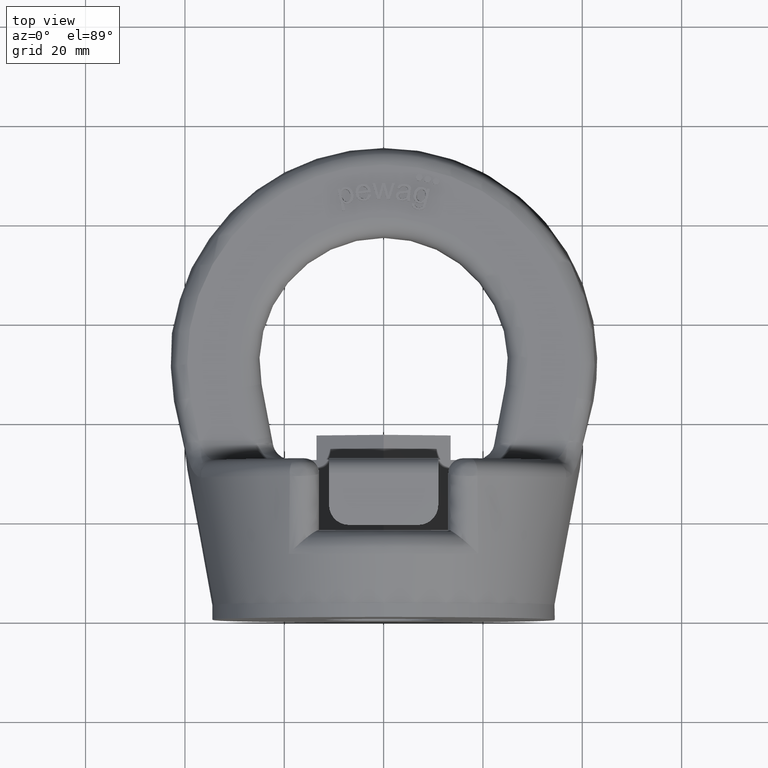
[diagram: clean part render]
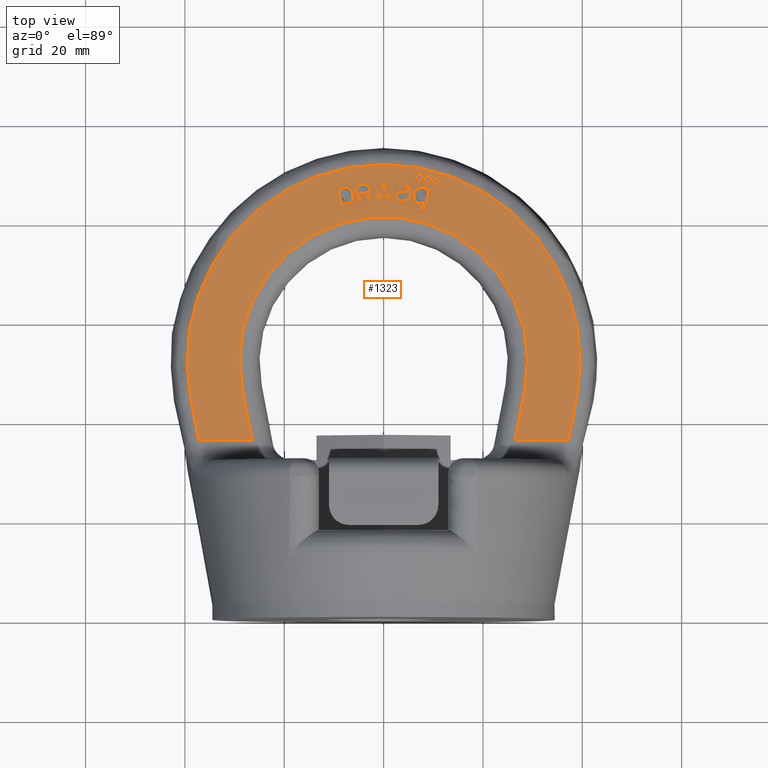
[diagram: same view with one face highlighted and labeled with its STEP entity id]
A machine part, top view. The second image highlights one B-rep face of the part: STEP entity #1323.
In plain terms, the highlighted planar face has unit normal (0, -0, -1).
Its self-contained STEP definition (entity closure, byte-faithful):
#1323=ADVANCED_FACE('',(#1770,#1771,#1772,#1773,#1774,#1775,#1776,#1777,
#1778),#1563,.F.);
#1563=PLANE('',#5106);
#1676=CIRCLE('',#5101,0.675);
#1677=CIRCLE('',#5102,0.675000000000001);
#1678=CIRCLE('',#5103,0.675000000000001);
#1679=CIRCLE('',#5104,29.);
#1680=CIRCLE('',#5105,39.5474398665704);
#1770=FACE_BOUND('',#1828,.T.);
#1771=FACE_BOUND('',#1829,.T.);
#1772=FACE_BOUND('',#1830,.T.);
#1773=FACE_BOUND('',#1831,.T.);
#1774=FACE_BOUND('',#1832,.T.);
#1775=FACE_BOUND('',#1833,.T.);
#1776=FACE_BOUND('',#1834,.T.);
#1777=FACE_BOUND('',#1835,.T.);
#1778=FACE_BOUND('',#1836,.T.);
#1828=EDGE_LOOP('',(#2700,#2701,#2702,#2703,#2704,#2705,#2706));
#1829=EDGE_LOOP('',(#2707,#2708,#2709,#2710,#2711,#2712,#2713,#2714,#2715,
#2716,#2717,#2718,#2719,#2720,#2721));
#1830=EDGE_LOOP('',(#2722,#2723,#2724,#2725,#2726));
#1831=EDGE_LOOP('',(#2727));
#1832=EDGE_LOOP('',(#2728));
#1833=EDGE_LOOP('',(#2729));
#1834=EDGE_LOOP('',(#2730,#2731,#2732,#2733,#2734,#2735,#2736,#2737));
#1835=EDGE_LOOP('',(#2738,#2739,#2740,#2741,#2742,#2743));
#1836=EDGE_LOOP('',(#2744,#2745,#2746,#2747,#2748,#2749,#2750,#2751,#2752));
#2104=LINE('',#6271,#2374);
#2105=LINE('',#6303,#2375);
#2106=LINE('',#6305,#2376);
#2107=LINE('',#6306,#2377);
#2108=LINE('',#6309,#2378);
#2109=LINE('',#6311,#2379);
#2110=LINE('',#6313,#2380);
#2111=LINE('',#6327,#2381);
#2112=LINE('',#6329,#2382);
#2113=LINE('',#6345,#2383);
#2114=LINE('',#6347,#2384);
#2115=LINE('',#6349,#2385);
#2116=LINE('',#6351,#2386);
#2117=LINE('',#6353,#2387);
#2118=LINE('',#6369,#2388);
#2119=LINE('',#6392,#2389);
#2120=LINE('',#6402,#2390);
#2121=LINE('',#6404,#2391);
#2122=LINE('',#6418,#2392);
#2123=LINE('',#6420,#2393);
#2124=LINE('',#6421,#2394);
#2125=LINE('',#6424,#2395);
#2126=LINE('',#6426,#2396);
#2127=LINE('',#6428,#2397);
#2128=LINE('',#6430,#2398);
#2129=LINE('',#6454,#2399);
#2130=LINE('',#6499,#2400);
#2374=VECTOR('',#5377,1.);
#2375=VECTOR('',#5378,1.);
#2376=VECTOR('',#5379,1.);
#2377=VECTOR('',#5380,1.);
#2378=VECTOR('',#5381,1.);
#2379=VECTOR('',#5382,1.);
#2380=VECTOR('',#5383,1.);
#2381=VECTOR('',#5384,1.);
#2382=VECTOR('',#5385,1.);
#2383=VECTOR('',#5386,1.);
#2384=VECTOR('',#5387,1.);
#2385=VECTOR('',#5388,1.);
#2386=VECTOR('',#5389,1.);
#2387=VECTOR('',#5390,1.);
#2388=VECTOR('',#5391,1.);
#2389=VECTOR('',#5392,1.);
#2390=VECTOR('',#5401,1.);
#2391=VECTOR('',#5402,1.);
#2392=VECTOR('',#5405,1.);
#2393=VECTOR('',#5406,1.);
#2394=VECTOR('',#5407,1.);
#2395=VECTOR('',#5408,1.);
#2396=VECTOR('',#5409,1.);
#2397=VECTOR('',#5410,1.);
#2398=VECTOR('',#5411,1.);
#2399=VECTOR('',#5412,1.);
#2400=VECTOR('',#5413,1.);
#2700=ORIENTED_EDGE('',*,*,#4256,.T.);
#2701=ORIENTED_EDGE('',*,*,#4257,.T.);
#2702=ORIENTED_EDGE('',*,*,#4258,.T.);
#2703=ORIENTED_EDGE('',*,*,#4259,.T.);
#2704=ORIENTED_EDGE('',*,*,#4260,.T.);
#2705=ORIENTED_EDGE('',*,*,#4261,.T.);
#2706=ORIENTED_EDGE('',*,*,#4262,.T.);
#2707=ORIENTED_EDGE('',*,*,#4263,.T.);
#2708=ORIENTED_EDGE('',*,*,#4264,.T.);
#2709=ORIENTED_EDGE('',*,*,#4265,.T.);
#2710=ORIENTED_EDGE('',*,*,#4266,.T.);
#2711=ORIENTED_EDGE('',*,*,#4267,.T.);
#2712=ORIENTED_EDGE('',*,*,#4268,.T.);
#2713=ORIENTED_EDGE('',*,*,#4269,.T.);
#2714=ORIENTED_EDGE('',*,*,#4270,.T.);
#2715=ORIENTED_EDGE('',*,*,#4271,.T.);
#2716=ORIENTED_EDGE('',*,*,#4272,.T.);
#2717=ORIENTED_EDGE('',*,*,#4273,.T.);
#2718=ORIENTED_EDGE('',*,*,#4274,.T.);
#2719=ORIENTED_EDGE('',*,*,#4275,.T.);
#2720=ORIENTED_EDGE('',*,*,#4276,.T.);
#2721=ORIENTED_EDGE('',*,*,#4277,.T.);
#2722=ORIENTED_EDGE('',*,*,#4278,.T.);
#2723=ORIENTED_EDGE('',*,*,#4279,.T.);
#2724=ORIENTED_EDGE('',*,*,#4280,.T.);
#2725=ORIENTED_EDGE('',*,*,#4281,.T.);
#2726=ORIENTED_EDGE('',*,*,#4282,.T.);
#2727=ORIENTED_EDGE('',*,*,#4283,.F.);
#2728=ORIENTED_EDGE('',*,*,#4284,.F.);
#2729=ORIENTED_EDGE('',*,*,#4285,.F.);
#2730=ORIENTED_EDGE('',*,*,#4286,.T.);
#2731=ORIENTED_EDGE('',*,*,#4287,.T.);
#2732=ORIENTED_EDGE('',*,*,#4288,.T.);
#2733=ORIENTED_EDGE('',*,*,#4289,.T.);
#2734=ORIENTED_EDGE('',*,*,#4290,.T.);
#2735=ORIENTED_EDGE('',*,*,#4291,.T.);
#2736=ORIENTED_EDGE('',*,*,#4292,.T.);
#2737=ORIENTED_EDGE('',*,*,#4293,.T.);
#2738=ORIENTED_EDGE('',*,*,#4294,.T.);
#2739=ORIENTED_EDGE('',*,*,#4295,.T.);
#2740=ORIENTED_EDGE('',*,*,#4296,.T.);
#2741=ORIENTED_EDGE('',*,*,#4297,.T.);
#2742=ORIENTED_EDGE('',*,*,#4298,.T.);
#2743=ORIENTED_EDGE('',*,*,#4299,.T.);
#2744=ORIENTED_EDGE('',*,*,#4300,.T.);
#2745=ORIENTED_EDGE('',*,*,#4301,.T.);
#2746=ORIENTED_EDGE('',*,*,#4302,.T.);
#2747=ORIENTED_EDGE('',*,*,#4303,.T.);
#2748=ORIENTED_EDGE('',*,*,#4304,.T.);
#2749=ORIENTED_EDGE('',*,*,#4305,.T.);
#2750=ORIENTED_EDGE('',*,*,#4306,.T.);
#2751=ORIENTED_EDGE('',*,*,#4307,.T.);
#2752=ORIENTED_EDGE('',*,*,#4308,.T.);
#3872=VERTEX_POINT('',#6264);
#3873=VERTEX_POINT('',#6265);
#3874=VERTEX_POINT('',#6270);
#3875=VERTEX_POINT('',#6272);
#3876=VERTEX_POINT('',#6285);
#3877=VERTEX_POINT('',#6302);
#3878=VERTEX_POINT('',#6304);
#3879=VERTEX_POINT('',#6307);
#3880=VERTEX_POINT('',#6308);
#3881=VERTEX_POINT('',#6310);
#3882=VERTEX_POINT('',#6312);
#3883=VERTEX_POINT('',#6314);
#3884=VERTEX_POINT('',#6321);
#3885=VERTEX_POINT('',#6326);
#3886=VERTEX_POINT('',#6328);
#3887=VERTEX_POINT('',#6330);
#3888=VERTEX_POINT('',#6337);
#3889=VERTEX_POINT('',#6344);
#3890=VERTEX_POINT('',#6346);
#3891=VERTEX_POINT('',#6348);
#3892=VERTEX_POINT('',#6350);
#3893=VERTEX_POINT('',#6352);
#3894=VERTEX_POINT('',#6362);
#3895=VERTEX_POINT('',#6363);
#3896=VERTEX_POINT('',#6368);
#3897=VERTEX_POINT('',#6370);
#3898=VERTEX_POINT('',#6391);
#3899=VERTEX_POINT('',#6394);
#3900=VERTEX_POINT('',#6396);
#3901=VERTEX_POINT('',#6398);
#3902=VERTEX_POINT('',#6400);
#3903=VERTEX_POINT('',#6401);
#3904=VERTEX_POINT('',#6403);
#3905=VERTEX_POINT('',#6405);
#3906=VERTEX_POINT('',#6410);
#3907=VERTEX_POINT('',#6412);
#3908=VERTEX_POINT('',#6417);
#3909=VERTEX_POINT('',#6419);
#3910=VERTEX_POINT('',#6422);
#3911=VERTEX_POINT('',#6423);
#3912=VERTEX_POINT('',#6425);
#3913=VERTEX_POINT('',#6427);
#3914=VERTEX_POINT('',#6429);
#3915=VERTEX_POINT('',#6431);
#3916=VERTEX_POINT('',#6455);
#3917=VERTEX_POINT('',#6456);
#3918=VERTEX_POINT('',#6461);
#3919=VERTEX_POINT('',#6478);
#3920=VERTEX_POINT('',#6485);
#3921=VERTEX_POINT('',#6498);
#3922=VERTEX_POINT('',#6500);
#3923=VERTEX_POINT('',#6505);
#3924=VERTEX_POINT('',#6518);
#4256=EDGE_CURVE('',#3872,#3873,#4842,.T.);
#4257=EDGE_CURVE('',#3873,#3874,#4843,.T.);
#4258=EDGE_CURVE('',#3874,#3875,#2104,.T.);
#4259=EDGE_CURVE('',#3875,#3876,#4844,.T.);
#4260=EDGE_CURVE('',#3876,#3877,#4845,.T.);
#4261=EDGE_CURVE('',#3877,#3878,#2105,.T.);
#4262=EDGE_CURVE('',#3878,#3872,#2106,.T.);
#4263=EDGE_CURVE('',#3879,#3880,#2107,.T.);
#4264=EDGE_CURVE('',#3880,#3881,#2108,.T.);
#4265=EDGE_CURVE('',#3881,#3882,#2109,.T.);
#4266=EDGE_CURVE('',#3882,#3883,#2110,.T.);
#4267=EDGE_CURVE('',#3883,#3884,#4846,.T.);
#4268=EDGE_CURVE('',#3884,#3885,#4847,.T.);
#4269=EDGE_CURVE('',#3885,#3886,#2111,.T.);
#4270=EDGE_CURVE('',#3886,#3887,#2112,.T.);
#4271=EDGE_CURVE('',#3887,#3888,#4848,.T.);
#4272=EDGE_CURVE('',#3888,#3889,#4849,.T.);
#4273=EDGE_CURVE('',#3889,#3890,#2113,.T.);
#4274=EDGE_CURVE('',#3890,#3891,#2114,.T.);
#4275=EDGE_CURVE('',#3891,#3892,#2115,.T.);
#4276=EDGE_CURVE('',#3892,#3893,#2116,.T.);
#4277=EDGE_CURVE('',#3893,#3879,#2117,.T.);
#4278=EDGE_CURVE('',#3894,#3895,#4850,.T.);
#4279=EDGE_CURVE('',#3895,#3896,#4851,.T.);
#4280=EDGE_CURVE('',#3896,#3897,#2118,.T.);
#4281=EDGE_CURVE('',#3897,#3898,#4852,.T.);
#4282=EDGE_CURVE('',#3898,#3894,#2119,.T.);
#4283=EDGE_CURVE('',#3899,#3899,#1676,.T.);
#4284=EDGE_CURVE('',#3900,#3900,#1677,.T.);
#4285=EDGE_CURVE('',#3901,#3901,#1678,.T.);
#4286=EDGE_CURVE('',#3902,#3903,#1679,.T.);
#4287=EDGE_CURVE('',#3903,#3904,#2120,.T.);
#4288=EDGE_CURVE('',#3904,#3905,#2121,.T.);
#4289=EDGE_CURVE('',#3905,#3906,#4853,.T.);
#4290=EDGE_CURVE('',#3906,#3907,#1680,.T.);
#4291=EDGE_CURVE('',#3907,#3908,#4854,.T.);
#4292=EDGE_CURVE('',#3908,#3909,#2122,.T.);
#4293=EDGE_CURVE('',#3909,#3902,#2123,.T.);
#4294=EDGE_CURVE('',#3910,#3911,#2124,.T.);
#4295=EDGE_CURVE('',#3911,#3912,#2125,.T.);
#4296=EDGE_CURVE('',#3912,#3913,#2126,.T.);
#4297=EDGE_CURVE('',#3913,#3914,#2127,.T.);
#4298=EDGE_CURVE('',#3914,#3915,#2128,.T.);
#4299=EDGE_CURVE('',#3915,#3910,#4855,.T.);
#4300=EDGE_CURVE('',#3916,#3917,#2129,.T.);
#4301=EDGE_CURVE('',#3917,#3918,#4856,.T.);
#4302=EDGE_CURVE('',#3918,#3919,#4857,.T.);
#4303=EDGE_CURVE('',#3919,#3920,#4858,.T.);
#4304=EDGE_CURVE('',#3920,#3921,#4859,.T.);
#4305=EDGE_CURVE('',#3921,#3922,#2130,.T.);
#4306=EDGE_CURVE('',#3922,#3923,#4860,.T.);
#4307=EDGE_CURVE('',#3923,#3924,#4861,.T.);
#4308=EDGE_CURVE('',#3924,#3916,#4862,.T.);
#4842=B_SPLINE_CURVE_WITH_KNOTS('',3,(#6252,#6253,#6254,#6255,#6256,#6257,
#6258,#6259,#6260,#6261,#6262,#6263),.UNSPECIFIED.,.F.,.F.,(4,2,2,2,2,4),
(0.,0.305645754892097,0.470829306249222,0.63601285760634,0.802206343843957,
1.),.UNSPECIFIED.);
#4843=B_SPLINE_CURVE_WITH_KNOTS('',3,(#6266,#6267,#6268,#6269),
 .UNSPECIFIED.,.F.,.F.,(4,4),(0.,1.),.UNSPECIFIED.);
#4844=B_SPLINE_CURVE_WITH_KNOTS('',3,(#6273,#6274,#6275,#6276,#6277,#6278,
#6279,#6280,#6281,#6282,#6283,#6284),.UNSPECIFIED.,.F.,.F.,(4,2,2,2,2,4),
(0.,0.163304651309289,0.38230378424853,0.61937566116819,0.856447538087857,
1.),.UNSPECIFIED.);
#4845=B_SPLINE_CURVE_WITH_KNOTS('',3,(#6286,#6287,#6288,#6289,#6290,#6291,
#6292,#6293,#6294,#6295,#6296,#6297,#6298,#6299,#6300,#6301),
 .UNSPECIFIED.,.F.,.F.,(4,2,2,2,2,2,2,4),(0.,0.139503666745451,0.312880428291714,
0.486257189837978,0.605370995480449,0.723854105689069,0.842337215897691,
1.),.UNSPECIFIED.);
#4846=B_SPLINE_CURVE_WITH_KNOTS('',3,(#6315,#6316,#6317,#6318,#6319,#6320),
 .UNSPECIFIED.,.F.,.F.,(4,2,4),(0.,0.728909607654961,1.),.UNSPECIFIED.);
#4847=B_SPLINE_CURVE_WITH_KNOTS('',3,(#6322,#6323,#6324,#6325),
 .UNSPECIFIED.,.F.,.F.,(4,4),(0.,1.),.UNSPECIFIED.);
#4848=B_SPLINE_CURVE_WITH_KNOTS('',3,(#6331,#6332,#6333,#6334,#6335,#6336),
 .UNSPECIFIED.,.F.,.F.,(4,2,4),(0.,0.752082276025126,1.),.UNSPECIFIED.);
#4849=B_SPLINE_CURVE_WITH_KNOTS('',3,(#6338,#6339,#6340,#6341,#6342,#6343),
 .UNSPECIFIED.,.F.,.F.,(4,2,4),(0.,0.250451922487259,1.),.UNSPECIFIED.);
#4850=B_SPLINE_CURVE_WITH_KNOTS('',3,(#6354,#6355,#6356,#6357,#6358,#6359,
#6360,#6361),.UNSPECIFIED.,.F.,.F.,(4,2,2,4),(0.,0.363477968613206,0.728087675912437,
1.),.UNSPECIFIED.);
#4851=B_SPLINE_CURVE_WITH_KNOTS('',3,(#6364,#6365,#6366,#6367),
 .UNSPECIFIED.,.F.,.F.,(4,4),(0.,1.),.UNSPECIFIED.);
#4852=B_SPLINE_CURVE_WITH_KNOTS('',3,(#6371,#6372,#6373,#6374,#6375,#6376,
#6377,#6378,#6379,#6380,#6381,#6382,#6383,#6384,#6385,#6386,#6387,#6388,
#6389,#6390),.UNSPECIFIED.,.F.,.F.,(4,2,2,2,2,2,2,2,2,4),(0.,0.102921203122039,
0.206156274885325,0.336063021724231,0.465707475917729,0.599570296299737,
0.733433116681745,0.862845255056167,0.992257393430589,1.),.UNSPECIFIED.);
#4853=B_SPLINE_CURVE_WITH_KNOTS('',3,(#6406,#6407,#6408,#6409),
 .UNSPECIFIED.,.F.,.F.,(4,4),(0.,1.),.UNSPECIFIED.);
#4854=B_SPLINE_CURVE_WITH_KNOTS('',3,(#6413,#6414,#6415,#6416),
 .UNSPECIFIED.,.F.,.F.,(4,4),(0.,1.),.UNSPECIFIED.);
#4855=B_SPLINE_CURVE_WITH_KNOTS('',3,(#6432,#6433,#6434,#6435,#6436,#6437,
#6438,#6439,#6440,#6441,#6442,#6443,#6444,#6445,#6446,#6447,#6448,#6449,
#6450,#6451,#6452,#6453),.UNSPECIFIED.,.F.,.F.,(4,2,2,2,2,2,2,2,2,2,4),
(0.,0.0830854503763917,0.16567829675508,0.273272220956506,0.380460889370533,
0.487248686046692,0.60194668988405,0.717055250849202,0.831909514623427,
0.915821305508705,1.),.UNSPECIFIED.);
#4856=B_SPLINE_CURVE_WITH_KNOTS('',3,(#6457,#6458,#6459,#6460),
 .UNSPECIFIED.,.F.,.F.,(4,4),(0.,1.),.UNSPECIFIED.);
#4857=B_SPLINE_CURVE_WITH_KNOTS('',3,(#6462,#6463,#6464,#6465,#6466,#6467,
#6468,#6469,#6470,#6471,#6472,#6473,#6474,#6475,#6476,#6477),
 .UNSPECIFIED.,.F.,.F.,(4,2,2,2,2,2,2,4),(0.,0.121639465164559,0.243930904991182,
0.445161792748217,0.64639268050526,0.763565096161255,0.881519242448361,
1.),.UNSPECIFIED.);
#4858=B_SPLINE_CURVE_WITH_KNOTS('',3,(#6479,#6480,#6481,#6482,#6483,#6484),
 .UNSPECIFIED.,.F.,.F.,(4,2,4),(0.,0.329344693449401,1.),.UNSPECIFIED.);
#4859=B_SPLINE_CURVE_WITH_KNOTS('',3,(#6486,#6487,#6488,#6489,#6490,#6491,
#6492,#6493,#6494,#6495,#6496,#6497),.UNSPECIFIED.,.F.,.F.,(4,2,2,2,2,4),
(0.,0.0173977322142842,0.217983350684932,0.490675035316412,0.745337517658204,
1.),.UNSPECIFIED.);
#4860=B_SPLINE_CURVE_WITH_KNOTS('',3,(#6501,#6502,#6503,#6504),
 .UNSPECIFIED.,.F.,.F.,(4,4),(0.,1.),.UNSPECIFIED.);
#4861=B_SPLINE_CURVE_WITH_KNOTS('',3,(#6506,#6507,#6508,#6509,#6510,#6511,
#6512,#6513,#6514,#6515,#6516,#6517),.UNSPECIFIED.,.F.,.F.,(4,2,2,2,2,4),
(0.,0.201730292707493,0.402155128097319,0.60175516992587,0.800199545078059,
1.),.UNSPECIFIED.);
#4862=B_SPLINE_CURVE_WITH_KNOTS('',3,(#6519,#6520,#6521,#6522,#6523,#6524,
#6525,#6526,#6527,#6528),.UNSPECIFIED.,.F.,.F.,(4,2,2,2,4),(0.,0.16140360480511,
0.323059797411171,0.661780038481063,1.),.UNSPECIFIED.);
#5101=AXIS2_PLACEMENT_3D('',#6393,#5393,#5394);
#5102=AXIS2_PLACEMENT_3D('',#6395,#5395,#5396);
#5103=AXIS2_PLACEMENT_3D('',#6397,#5397,#5398);
#5104=AXIS2_PLACEMENT_3D('',#6399,#5399,#5400);
#5105=AXIS2_PLACEMENT_3D('',#6411,#5403,#5404);
#5106=AXIS2_PLACEMENT_3D('',#6529,#5414,#5415);
#5377=DIRECTION('',(0.932627810685708,-0.360839807581678,4.28737866629378E-17));
#5378=DIRECTION('',(0.223073618739037,0.974801600646342,-1.1582268637404E-16));
#5379=DIRECTION('',(0.974801600646348,-0.223073618739012,2.6504865979292E-17));
#5380=DIRECTION('',(-0.258669280108079,-0.965965943254921,1.14772862928657E-16));
#5381=DIRECTION('',(-0.999999996290981,8.61280282547047E-5,-1.0233446065276E-20));
#5382=DIRECTION('',(-0.297325554913542,0.954776159314504,-1.13443329990811E-16));
#5383=DIRECTION('',(0.999999996290981,-8.61280282400199E-5,1.02334460635312E-20));
#5384=DIRECTION('',(0.266681171387152,0.963784806285914,-1.14513707483146E-16));
#5385=DIRECTION('',(0.999999996290981,-8.61280282983557E-5,1.02334460704625E-20));
#5386=DIRECTION('',(0.999999996290981,-8.6128028234905E-5,1.02334460629235E-20));
#5387=DIRECTION('',(-0.303102709413074,-0.952957893900068,1.13227289737388E-16));
#5388=DIRECTION('',(-0.999999996290981,8.61280282536147E-5,-1.02334460651465E-20));
#5389=DIRECTION('',(-0.260560028929127,0.965457648643612,-1.14712469052291E-16));
#5390=DIRECTION('',(-0.226108510352173,0.974102120696963,-1.1573957649122E-16));
#5391=DIRECTION('',(0.999999992948009,-0.000118760184174544,1.41106903766377E-20));
#5392=DIRECTION('',(-0.99278877090744,-0.119876838297037,1.42433675082017E-17));
#5393=DIRECTION('',(0.,1.18816676436768E-16,1.));
#5394=DIRECTION('',(0.,0.999999999999993,0.));
#5395=DIRECTION('',(0.,1.18816676436768E-16,1.));
#5396=DIRECTION('',(0.,0.999999999999992,0.));
#5397=DIRECTION('',(0.,1.18816676436768E-16,1.));
#5398=DIRECTION('',(0.,0.999999999999992,0.));
#5399=DIRECTION('',(0.,-1.18816676436768E-16,-1.));
#5400=DIRECTION('',(0.,1.,-1.19636101791504E-16));
#5401=DIRECTION('',(-0.185718271555201,-0.982603034602758,1.16749626828182E-16));
#5402=DIRECTION('',(1.,0.,0.));
#5403=DIRECTION('',(0.,1.18816676436768E-16,1.));
#5404=DIRECTION('',(0.,1.,-1.31593105533224E-16));
#5405=DIRECTION('',(1.,0.,0.));
#5406=DIRECTION('',(-0.185718271555201,0.982603034602758,-1.16749626828182E-16));
#5407=DIRECTION('',(0.222905699950523,-0.974840011965844,1.1582725027936E-16));
#5408=DIRECTION('',(-0.974840011965845,-0.222905699950522,2.64849144269324E-17));
#5409=DIRECTION('',(-0.222905699950522,0.974840011965845,-1.1582725027936E-16));
#5410=DIRECTION('',(0.974840011965853,0.222905699950484,-2.64849144269278E-17));
#5411=DIRECTION('',(0.222905699950532,-0.974840011965842,1.1582725027936E-16));
#5412=DIRECTION('',(-0.992768106667,0.120047850396502,-1.42636865974907E-17));
#5413=DIRECTION('',(-0.968001568160623,0.250944145256619,-2.98163493106569E-17));
#5414=DIRECTION('',(0.,-1.18816676436768E-16,-1.));
#5415=DIRECTION('',(0.,1.,-1.17961196366423E-16));
#6252=CARTESIAN_POINT('',(9.29424571061465,86.5576656774909,9.));
#6253=CARTESIAN_POINT('',(9.08469689301175,85.6419656320641,9.));
#6254=CARTESIAN_POINT('',(8.87514807540886,84.7262655866373,9.));
#6255=CARTESIAN_POINT('',(8.55235044829263,83.3156835313658,9.));
#6256=CARTESIAN_POINT('',(8.42084670474142,82.9773212150293,9.));
#6257=CARTESIAN_POINT('',(8.12081574952011,82.6113916065159,9.));
#6258=CARTESIAN_POINT('',(7.92118375906971,82.4846570530188,9.));
#6259=CARTESIAN_POINT('',(7.42219318339072,82.3477198308902,9.));
#6260=CARTESIAN_POINT('',(7.13466686310454,82.350511547545,9.));
#6261=CARTESIAN_POINT('',(6.42445154971634,82.513037234758,9.));
#6262=CARTESIAN_POINT('',(6.13225005464364,82.6696566448608,9.));
#6263=CARTESIAN_POINT('',(5.93378400328476,82.8945776478991,9.));
#6264=CARTESIAN_POINT('',(9.29424571061465,86.5576656774909,9.));
#6265=CARTESIAN_POINT('',(5.93378400328476,82.8945776478991,9.));
#6266=CARTESIAN_POINT('',(5.93378400328476,82.8945776478991,9.));
#6267=CARTESIAN_POINT('',(5.73531795192588,83.1194986509375,9.));
#6268=CARTESIAN_POINT('',(5.67994263059771,83.4026077297059,9.));
#6269=CARTESIAN_POINT('',(5.766259414016,83.7430439980933,9.));
#6270=CARTESIAN_POINT('',(5.766259414016,83.7430439980933,9.));
#6271=CARTESIAN_POINT('',(32.7379691758054,73.3075128579301,9.00000000000001));
#6272=CARTESIAN_POINT('',(6.28177261020001,83.5435885664779,9.));
#6273=CARTESIAN_POINT('',(6.28177261020001,83.5435885664779,9.));
#6274=CARTESIAN_POINT('',(6.26648808708457,83.3770298297902,9.));
#6275=CARTESIAN_POINT('',(6.30118264900432,83.2450908327058,9.));
#6276=CARTESIAN_POINT('',(6.49940759481855,83.0172619244844,9.));
#6277=CARTESIAN_POINT('',(6.67369661716648,82.9248361658599,9.));
#6278=CARTESIAN_POINT('',(7.16353965485705,82.81274047484,9.));
#6279=CARTESIAN_POINT('',(7.37009097572485,82.8174349584639,9.));
#6280=CARTESIAN_POINT('',(7.69212309313374,82.9539497859577,9.));
#6281=CARTESIAN_POINT('',(7.81785276737018,83.072796248486,9.));
#6282=CARTESIAN_POINT('',(7.96081601963852,83.3434466777721,9.));
#6283=CARTESIAN_POINT('',(8.02695537310998,83.5717239197035,9.));
#6284=CARTESIAN_POINT('',(8.10505012933671,83.9234892973702,9.));
#6285=CARTESIAN_POINT('',(8.10505012933671,83.9234892973702,9.));
#6286=CARTESIAN_POINT('',(8.10505012933671,83.9234892973702,9.));
#6287=CARTESIAN_POINT('',(7.80158041882359,83.700060319755,9.));
#6288=CARTESIAN_POINT('',(7.47197762261021,83.6302300818374,9.));
#6289=CARTESIAN_POINT('',(6.67041628820745,83.8136593944155,9.));
#6290=CARTESIAN_POINT('',(6.36153706189759,84.0496759801191,9.));
#6291=CARTESIAN_POINT('',(6.01944111211863,84.7916537478469,9.));
#6292=CARTESIAN_POINT('',(5.98380741628148,85.1977874880825,9.));
#6293=CARTESIAN_POINT('',(6.15406583058383,85.9417937749918,9.));
#6294=CARTESIAN_POINT('',(6.27395847382673,86.2084134800823,9.));
#6295=CARTESIAN_POINT('',(6.61446676393222,86.6699335977475,9.));
#6296=CARTESIAN_POINT('',(6.82156480102732,86.8318199837231,9.));
#6297=CARTESIAN_POINT('',(7.31001020409492,87.012919119974,9.));
#6298=CARTESIAN_POINT('',(7.57510651271864,87.0266541708322,9.));
#6299=CARTESIAN_POINT('',(8.24307429138761,86.8737964103505,9.));
#6300=CARTESIAN_POINT('',(8.52240823571291,86.6504457053487,9.));
#6301=CARTESIAN_POINT('',(8.70059151186884,86.2896334544987,9.));
#6302=CARTESIAN_POINT('',(8.70059151186884,86.2896334544987,9.00000000000001));
#6303=CARTESIAN_POINT('',(14.5755332133808,111.962335617624,9.));
#6304=CARTESIAN_POINT('',(8.78841711924653,86.6734195029496,9.00000000000001));
#6305=CARTESIAN_POINT('',(39.2128839058665,79.7110838853264,9.00000000000001));
#6306=CARTESIAN_POINT('',(7.49312049440011,115.043705565977,9.));
#6307=CARTESIAN_POINT('',(-0.0145550087829062,87.0072922506664,9.));
#6308=CARTESIAN_POINT('',(-0.685949453693926,84.5000592000172,9.));
#6309=CARTESIAN_POINT('',(44.998234041626,84.4961245113558,9.));
#6310=CARTESIAN_POINT('',(-1.27279138553177,84.5001097435559,9.));
#6311=CARTESIAN_POINT('',(-3.00165716067735,90.0518687413447,9.));
#6312=CARTESIAN_POINT('',(-2.28806339781613,87.7603660401607,9.));
#6313=CARTESIAN_POINT('',(44.9985148335403,87.7562933404003,9.));
#6314=CARTESIAN_POINT('',(-1.70707817188486,87.7603160010485,9.));
#6315=CARTESIAN_POINT('',(-1.70707817188486,87.7603160010485,9.));
#6316=CARTESIAN_POINT('',(-1.53104058420697,87.1329025253625,9.));
#6317=CARTESIAN_POINT('',(-1.35500299652908,86.5054890496764,9.));
#6318=CARTESIAN_POINT('',(-1.11349487833561,85.6447328336834,9.));
#6319=CARTESIAN_POINT('',(-1.04781538521732,85.4114487738806,9.));
#6320=CARTESIAN_POINT('',(-0.982240373400392,85.1781353738257,9.));
#6321=CARTESIAN_POINT('',(-0.982240373400392,85.1781353738257,9.));
#6322=CARTESIAN_POINT('',(-0.982240373400392,85.1781353738257,9.));
#6323=CARTESIAN_POINT('',(-0.974038010640586,85.2126703543769,9.));
#6324=CARTESIAN_POINT('',(-0.916622958567248,85.4371473748611,9.));
#6325=CARTESIAN_POINT('',(-0.811166657511382,85.8504153466054,9.));
#6326=CARTESIAN_POINT('',(-0.811166657511382,85.8504153466054,9.));
#6327=CARTESIAN_POINT('',(7.36875939922528,115.412639064979,9.));
#6328=CARTESIAN_POINT('',(-0.282727295408189,87.7601933245156,9.));
#6329=CARTESIAN_POINT('',(44.9985148335393,87.7562933403976,9.));
#6330=CARTESIAN_POINT('',(0.294743906979145,87.7601435880593,9.));
#6331=CARTESIAN_POINT('',(0.294743906979145,87.7601435880593,9.));
#6332=CARTESIAN_POINT('',(0.460239159626052,87.1296611815189,9.));
#6333=CARTESIAN_POINT('',(0.62573441227296,86.4991787749786,9.));
#6334=CARTESIAN_POINT('',(0.845783811019034,85.6608630392687,9.));
#6335=CARTESIAN_POINT('',(0.902080870096999,85.4534911172769,9.));
#6336=CARTESIAN_POINT('',(0.957506472685565,85.2458884916962,9.));
#6337=CARTESIAN_POINT('',(0.957506472685565,85.2458884916962,9.));
#6338=CARTESIAN_POINT('',(0.957506472685565,85.2458884916962,9.));
#6339=CARTESIAN_POINT('',(1.02077697476943,85.455783273349,9.));
#6340=CARTESIAN_POINT('',(1.08404747685329,85.6656780550018,9.));
#6341=CARTESIAN_POINT('',(1.33667281690068,86.5037422214428,9.));
#6342=CARTESIAN_POINT('',(1.5261598329203,87.1318717550064,9.));
#6343=CARTESIAN_POINT('',(1.71558075991188,87.7600212141823,9.));
#6344=CARTESIAN_POINT('',(1.71558075991188,87.7600212141823,9.));
#6345=CARTESIAN_POINT('',(44.9985148335404,87.7562933404005,9.));
#6346=CARTESIAN_POINT('',(2.26259709158507,87.759974100744,9.));
#6347=CARTESIAN_POINT('',(11.1686159261049,115.760584745277,9.));
#6348=CARTESIAN_POINT('',(1.22567935420897,84.4998945551966,9.));
#6349=CARTESIAN_POINT('',(44.9982340416261,84.4961245113558,9.));
#6350=CARTESIAN_POINT('',(0.641180104733758,84.4999448969647,9.00000000000001));
#6351=CARTESIAN_POINT('',(-1.5042189576736,92.4493296997942,9.));
#6352=CARTESIAN_POINT('',(0.114244731012316,86.4524077861925,9.00000000000001));
#6353=CARTESIAN_POINT('',(-1.67612714416519,94.1655409085604,9.));
#6354=CARTESIAN_POINT('',(-5.03091311672715,85.6278966125683,9.));
#6355=CARTESIAN_POINT('',(-4.96706271783168,85.2749859227258,9.));
#6356=CARTESIAN_POINT('',(-4.83188378306249,85.0153352295111,9.));
#6357=CARTESIAN_POINT('',(-4.41822585234219,84.6820357560005,9.));
#6358=CARTESIAN_POINT('',(-4.17716167522603,84.6154966286787,9.));
#6359=CARTESIAN_POINT('',(-3.69804919230486,84.6733482999751,9.));
#6360=CARTESIAN_POINT('',(-3.52996308029331,84.7469836529213,9.));
#6361=CARTESIAN_POINT('',(-3.39729737207409,84.8696814401805,9.));
#6362=CARTESIAN_POINT('',(-5.03091311672715,85.6278966125683,9.));
#6363=CARTESIAN_POINT('',(-3.39729737207409,84.8696814401805,9.));
#6364=CARTESIAN_POINT('',(-3.39729737207409,84.8696814401805,9.));
#6365=CARTESIAN_POINT('',(-3.26593255919594,84.9933816988327,9.));
#6366=CARTESIAN_POINT('',(-3.17109215783044,85.1752874963651,9.));
#6367=CARTESIAN_POINT('',(-3.1142150642837,85.4175441922414,9.));
#6368=CARTESIAN_POINT('',(-3.1142150642837,85.4175441922414,9.));
#6369=CARTESIAN_POINT('',(44.9976737053561,85.4118304154298,9.));
#6370=CARTESIAN_POINT('',(-2.52900139490929,85.4174746921577,9.));
#6371=CARTESIAN_POINT('',(-2.52900139490929,85.4174746921577,9.));
#6372=CARTESIAN_POINT('',(-2.5808497707538,85.0749442340471,9.));
#6373=CARTESIAN_POINT('',(-2.7184192381433,84.7974339998023,9.));
#6374=CARTESIAN_POINT('',(-3.16568130320498,84.3718059692191,9.));
#6375=CARTESIAN_POINT('',(-3.4691046547112,84.2429700136617,9.));
#6376=CARTESIAN_POINT('',(-4.33313517609573,84.1386404219792,9.));
#6377=CARTESIAN_POINT('',(-4.73209065399096,84.2377305366289,9.));
#6378=CARTESIAN_POINT('',(-5.36727192462435,84.7541248748364,9.));
#6379=CARTESIAN_POINT('',(-5.55775237789014,85.1445244586682,9.));
#6380=CARTESIAN_POINT('',(-5.68705928213149,86.215410581086,9.));
#6381=CARTESIAN_POINT('',(-5.59508363094511,86.6555504186951,9.));
#6382=CARTESIAN_POINT('',(-5.09785389430462,87.3255137161526,9.));
#6383=CARTESIAN_POINT('',(-4.74510671573864,87.5211678617605,9.));
#6384=CARTESIAN_POINT('',(-3.85084094057753,87.6291482870685,9.));
#6385=CARTESIAN_POINT('',(-3.47254155952063,87.5252448960747,9.));
#6386=CARTESIAN_POINT('',(-2.84314376106992,87.0029146568926,9.));
#6387=CARTESIAN_POINT('',(-2.65364008660321,86.6060391765812,9.));
#6388=CARTESIAN_POINT('',(-2.58519160794397,86.039166693423,9.));
#6389=CARTESIAN_POINT('',(-2.58042046082332,85.9898820896971,9.));
#6390=CARTESIAN_POINT('',(-2.57488019456815,85.924456636301,9.));
#6391=CARTESIAN_POINT('',(-2.57488019456815,85.924456636301,9.));
#6392=CARTESIAN_POINT('',(46.5865530558657,91.8605805701224,9.));
#6393=CARTESIAN_POINT('',(7.16521590427106,88.9109696573414,9.));
#6394=CARTESIAN_POINT('',(7.16521590427106,89.5859696573414,9.));
#6395=CARTESIAN_POINT('',(8.87978072071518,88.5364132661105,9.));
#6396=CARTESIAN_POINT('',(8.87978072071518,89.2114132661105,9.));
#6397=CARTESIAN_POINT('',(10.575,88.0822584520426,9.));
#6398=CARTESIAN_POINT('',(10.575,88.7572584520426,9.));
#6399=CARTESIAN_POINT('',(3.19803995620443E-17,52.,9.00000000000001));
#6400=CARTESIAN_POINT('',(-28.49548800348,46.6141701248992,9.00000000000001));
#6401=CARTESIAN_POINT('',(28.49548800348,46.6141701248992,9.00000000000001));
#6402=CARTESIAN_POINT('',(26.3489340433656,35.2571269137792,9.00000000000001));
#6403=CARTESIAN_POINT('',(26.4893418181224,36.,9.00000000000001));
#6404=CARTESIAN_POINT('',(45.,36.,9.00000000000001));
#6405=CARTESIAN_POINT('',(37.203375317309,36.,9.00000000000001));
#6406=CARTESIAN_POINT('',(37.203375317309,36.,9.00000000000001));
#6407=CARTESIAN_POINT('',(37.7503509181655,38.8570356354199,9.00000000000001));
#6408=CARTESIAN_POINT('',(38.2970320657411,41.7141276555856,9.00000000000001));
#6409=CARTESIAN_POINT('',(38.8434545036468,44.571269137792,9.00000000000001));
#6410=CARTESIAN_POINT('',(38.8434545036468,44.571269137792,9.00000000000001));
#6411=CARTESIAN_POINT('',(0.,52.,9.00000000000001));
#6412=CARTESIAN_POINT('',(-38.8434545036468,44.5712691377921,9.00000000000001));
#6413=CARTESIAN_POINT('',(-38.8434545036468,44.5712691377921,9.00000000000001));
#6414=CARTESIAN_POINT('',(-38.2970320657411,41.7141276555856,9.00000000000001));
#6415=CARTESIAN_POINT('',(-37.7503509181656,38.8570356354199,9.00000000000001));
#6416=CARTESIAN_POINT('',(-37.2033753173091,36.,9.00000000000001));
#6417=CARTESIAN_POINT('',(-37.2033753173091,36.,9.00000000000001));
#6418=CARTESIAN_POINT('',(45.,36.,9.00000000000001));
#6419=CARTESIAN_POINT('',(-26.4893418181224,36.,9.00000000000001));
#6420=CARTESIAN_POINT('',(-28.49548800348,46.6141701248992,9.00000000000001));
#6421=CARTESIAN_POINT('',(-10.0556081161205,92.4110533906198,9.));
#6422=CARTESIAN_POINT('',(-8.09437998426785,83.833957085109,9.00000000000001));
#6423=CARTESIAN_POINT('',(-7.74077593070091,82.2875301436405,9.00000000000001));
#6424=CARTESIAN_POINT('',(47.3148321854195,94.8764767530206,9.));
#6425=CARTESIAN_POINT('',(-8.28887365331332,82.162202802743,9.00000000000001));
#6426=CARTESIAN_POINT('',(-10.6037058387329,92.2857260497224,9.));
#6427=CARTESIAN_POINT('',(-9.29400215681239,86.5579606617647,9.));
#6428=CARTESIAN_POINT('',(46.3097036819207,99.2722346120402,9.));
#6429=CARTESIAN_POINT('',(-8.79500485518401,86.6720607617069,9.));
#6430=CARTESIAN_POINT('',(-10.1047085371044,92.3998261496639,9.));
#6431=CARTESIAN_POINT('',(-8.70057358398471,86.2590817236369,9.));
#6432=CARTESIAN_POINT('',(-8.70057358398471,86.2590817236369,9.));
#6433=CARTESIAN_POINT('',(-8.61991231466516,86.4475753753623,9.));
#6434=CARTESIAN_POINT('',(-8.51402702002166,86.5993242845745,9.));
#6435=CARTESIAN_POINT('',(-8.25486268253128,86.8281301223776,9.));
#6436=CARTESIAN_POINT('',(-8.08405633224091,86.9102030284264,9.));
#6437=CARTESIAN_POINT('',(-7.5976196034224,87.021431043473,9.));
#6438=CARTESIAN_POINT('',(-7.33709314569913,87.0066059338666,9.));
#6439=CARTESIAN_POINT('',(-6.85187819839206,86.8252426649564,9.));
#6440=CARTESIAN_POINT('',(-6.64707993842752,86.6636814606454,9.));
#6441=CARTESIAN_POINT('',(-6.3165281501276,86.2041384842741,9.));
#6442=CARTESIAN_POINT('',(-6.19746064406181,85.9374983324424,9.));
#6443=CARTESIAN_POINT('',(-6.05376088354113,85.309051970162,9.));
#6444=CARTESIAN_POINT('',(-6.0461637841529,85.0025739477163,9.));
#6445=CARTESIAN_POINT('',(-6.16533339535864,84.4287720681627,9.));
#6446=CARTESIAN_POINT('',(-6.29275217165908,84.1892318023615,9.));
#6447=CARTESIAN_POINT('',(-6.68086514485905,83.8079464181888,9.));
#6448=CARTESIAN_POINT('',(-6.90315033094478,83.684760506831,9.));
#6449=CARTESIAN_POINT('',(-7.33591915775749,83.5858041272473,9.));
#6450=CARTESIAN_POINT('',(-7.50907310285854,83.5863615969736,9.));
#6451=CARTESIAN_POINT('',(-7.83400939986112,83.6705544686539,9.));
#6452=CARTESIAN_POINT('',(-7.97431613165437,83.7397779308786,9.));
#6453=CARTESIAN_POINT('',(-8.09437998426785,83.833957085109,9.));
#6454=CARTESIAN_POINT('',(41.9365153617477,79.6656867734319,9.00000000000001));
#6455=CARTESIAN_POINT('',(5.39758761306642,84.0840597072168,9.00000000000001));
#6456=CARTESIAN_POINT('',(4.8149896573221,84.1545088199178,9.00000000000001));
#6457=CARTESIAN_POINT('',(4.8149896573221,84.1545088199177,9.));
#6458=CARTESIAN_POINT('',(4.77052773417068,84.2746832334488,9.));
#6459=CARTESIAN_POINT('',(4.74948503508278,84.412898098218,9.));
#6460=CARTESIAN_POINT('',(4.75158516439364,84.5668676856605,9.));
#6461=CARTESIAN_POINT('',(4.75158516439364,84.5668676856605,9.));
#6462=CARTESIAN_POINT('',(4.75158516439364,84.5668676856605,9.));
#6463=CARTESIAN_POINT('',(4.52372640123979,84.4193250034868,9.));
#6464=CARTESIAN_POINT('',(4.31008843390881,84.3210840308,9.));
#6465=CARTESIAN_POINT('',(3.91046237234504,84.225235049324,9.));
#6466=CARTESIAN_POINT('',(3.70141833346057,84.2149516476907,9.));
#6467=CARTESIAN_POINT('',(3.11998324788739,84.2852601434002,9.));
#6468=CARTESIAN_POINT('',(2.85256031224451,84.4057252898137,9.));
#6469=CARTESIAN_POINT('',(2.50617381612598,84.800122106805,9.));
#6470=CARTESIAN_POINT('',(2.43530310123196,85.0336496048748,9.));
#6471=CARTESIAN_POINT('',(2.4871272883755,85.4622237107844,9.));
#6472=CARTESIAN_POINT('',(2.5418902585648,85.602867730927,9.));
#6473=CARTESIAN_POINT('',(2.7205148832671,85.8465331664195,9.));
#6474=CARTESIAN_POINT('',(2.82929162852926,85.940338214379,9.));
#6475=CARTESIAN_POINT('',(3.08616056828767,86.0696556477159,9.));
#6476=CARTESIAN_POINT('',(3.22664299911006,86.1137684720596,9.));
#6477=CARTESIAN_POINT('',(3.38046550298257,86.1369126113253,9.));
#6478=CARTESIAN_POINT('',(3.38046550298257,86.1369126113253,9.));
#6479=CARTESIAN_POINT('',(3.38046550298257,86.1369126113253,9.));
#6480=CARTESIAN_POINT('',(3.49439311505104,86.1521256042011,9.));
#6481=CARTESIAN_POINT('',(3.66283742733101,86.1595867341978,9.));
#6482=CARTESIAN_POINT('',(4.34335205871991,86.1582770125523,9.));
#6483=CARTESIAN_POINT('',(4.68353091624578,86.1799494416239,9.));
#6484=CARTESIAN_POINT('',(4.90518081883806,86.2273598462695,9.));
#6485=CARTESIAN_POINT('',(4.90518081883806,86.2273598462695,9.));
#6486=CARTESIAN_POINT('',(4.90518081883806,86.2273598462695,9.));
#6487=CARTESIAN_POINT('',(4.91662761611761,86.3025076549267,9.));
#6488=CARTESIAN_POINT('',(4.92359479524884,86.3503673377972,9.));
#6489=CARTESIAN_POINT('',(4.95303093354638,86.5937974299538,9.));
#6490=CARTESIAN_POINT('',(4.91861020654246,86.7579810825338,9.));
#6491=CARTESIAN_POINT('',(4.69775721714765,87.0035665494763,9.));
#6492=CARTESIAN_POINT('',(4.49272036437629,87.0900979504913,9.));
#6493=CARTESIAN_POINT('',(3.9484971242798,87.1559067024755,9.));
#6494=CARTESIAN_POINT('',(3.75007096040657,87.1346774160364,9.));
#6495=CARTESIAN_POINT('',(3.47705574592248,86.9844781295597,9.));
#6496=CARTESIAN_POINT('',(3.36584130586833,86.8355858723423,9.));
#6497=CARTESIAN_POINT('',(3.27759429265978,86.6131822351285,9.));
#6498=CARTESIAN_POINT('',(3.27759429265978,86.6131822351285,9.));
#6499=CARTESIAN_POINT('',(37.9061949987759,77.6360845821347,9.00000000000001));
#6500=CARTESIAN_POINT('',(2.74105284366464,86.7522749181793,9.));
#6501=CARTESIAN_POINT('',(2.74105284366464,86.7522749181793,9.));
#6502=CARTESIAN_POINT('',(2.81883402533287,86.9759441083158,9.));
#6503=CARTESIAN_POINT('',(2.92262298615913,87.1512449326694,9.));
#6504=CARTESIAN_POINT('',(3.05358259631455,87.2780367742487,9.));
#6505=CARTESIAN_POINT('',(3.05358259631455,87.2780367742487,9.));
#6506=CARTESIAN_POINT('',(3.05358259631455,87.2780367742487,9.));
#6507=CARTESIAN_POINT('',(3.18351753413122,87.4061120971018,9.));
#6508=CARTESIAN_POINT('',(3.36177389251036,87.4947165911507,9.));
#6509=CARTESIAN_POINT('',(3.80910226875395,87.595504943697,9.));
#6510=CARTESIAN_POINT('',(4.06396911046776,87.603454603327,9.));
#6511=CARTESIAN_POINT('',(4.62796114347374,87.5352553624888,9.));
#6512=CARTESIAN_POINT('',(4.85187595987932,87.4745513679803,9.));
#6513=CARTESIAN_POINT('',(5.18865614452879,87.3020182004794,9.));
#6514=CARTESIAN_POINT('',(5.30773761174309,87.2049060412841,9.));
#6515=CARTESIAN_POINT('',(5.44957813584974,86.987625902432,9.));
#6516=CARTESIAN_POINT('',(5.49217509370363,86.85676271557,9.));
#6517=CARTESIAN_POINT('',(5.5064933446212,86.7019673545301,9.));
#6518=CARTESIAN_POINT('',(5.5064933446212,86.7019673545301,9.));
#6519=CARTESIAN_POINT('',(5.5064933446212,86.7019673545301,9.));
#6520=CARTESIAN_POINT('',(5.51376704510415,86.6060026115085,9.));
#6521=CARTESIAN_POINT('',(5.50275492511305,86.4368766260606,9.));
#6522=CARTESIAN_POINT('',(5.44383658257386,85.9496354869865,9.));
#6523=CARTESIAN_POINT('',(5.4143543783322,85.705824440069,9.));
#6524=CARTESIAN_POINT('',(5.32309774301543,84.9511530589074,9.));
#6525=CARTESIAN_POINT('',(5.29575465599495,84.6274591613492,9.));
#6526=CARTESIAN_POINT('',(5.31196853218947,84.3520408196504,9.));
#6527=CARTESIAN_POINT('',(5.34274076869498,84.2159260692039,9.));
#6528=CARTESIAN_POINT('',(5.39758761306642,84.0840597072168,9.));
#6529=CARTESIAN_POINT('',(45.,105.,9.));